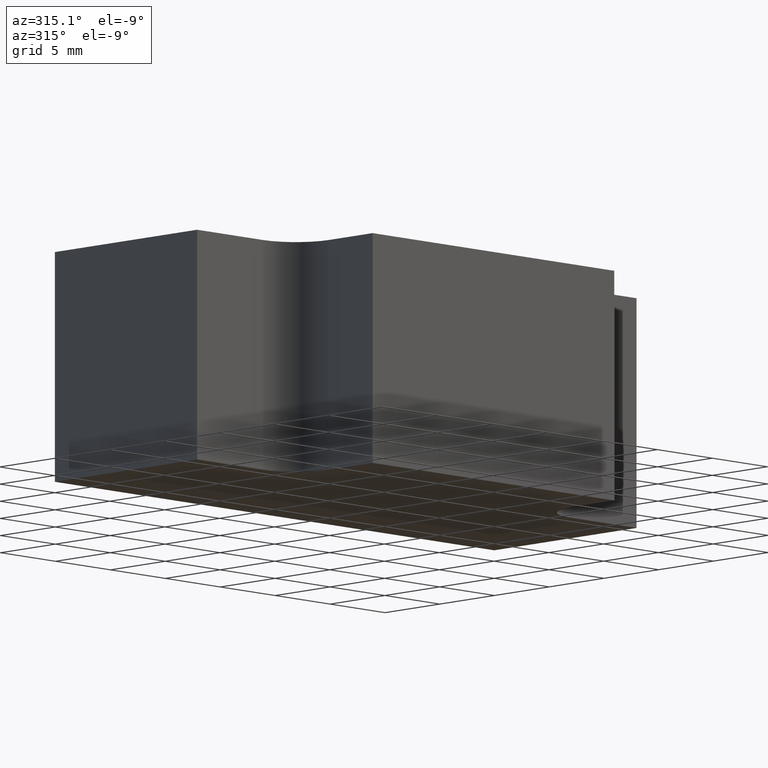
[diagram: clean part render]
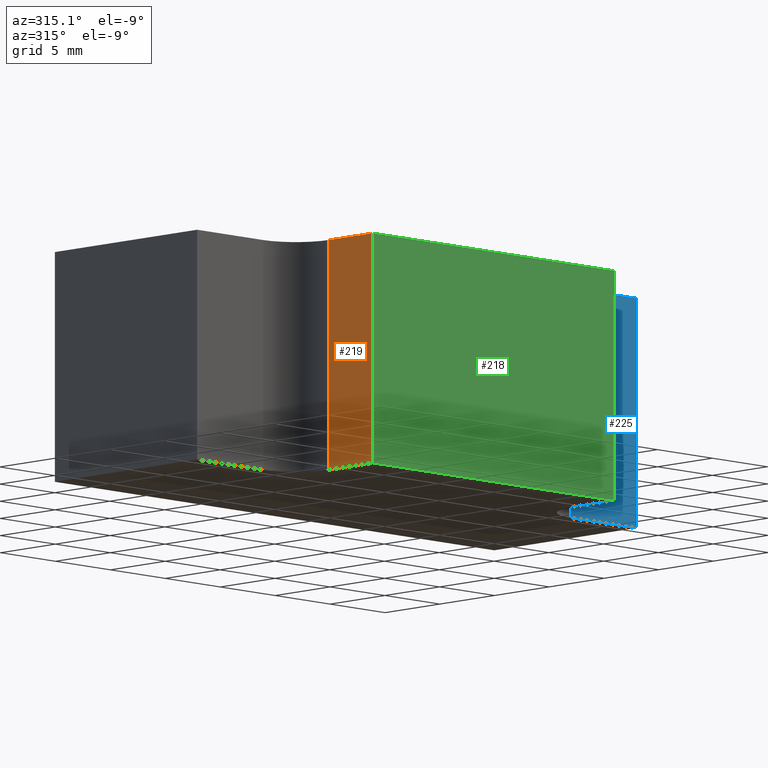
[diagram: same view with three faces highlighted in distinct colors, each labeled with its STEP entity id]
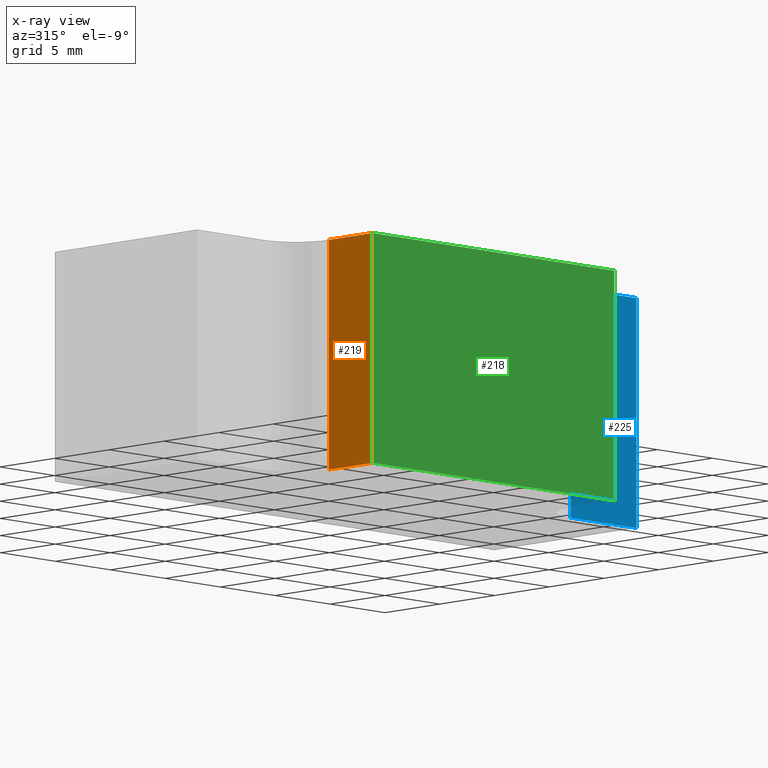
[diagram: x-ray of the same camera — body ghosted, the three highlighted faces saturated]
A machine part, auxiliary view with three faces highlighted in distinct colors.
The next image is the same camera in x-ray (body ghosted, the three faces saturated) — at least one of them is partly hidden behind the body in this view.
Their STEP definitions:

[orange] entity #219 — the highlighted planar face has unit normal (-1, 0, 0).
#19=FACE_OUTER_BOUND('',#31,.T.);
#31=EDGE_LOOP('',(#161,#162,#163,#164));
#43=LINE('',#338,#69);
#50=LINE('',#354,#76);
#52=LINE('',#358,#78);
#53=LINE('',#359,#79);
#69=VECTOR('',#276,10.);
#76=VECTOR('',#287,10.);
#78=VECTOR('',#291,10.);
#79=VECTOR('',#292,10.);
#100=VERTEX_POINT('',#335);
#101=VERTEX_POINT('',#337);
#108=VERTEX_POINT('',#352);
#109=VERTEX_POINT('',#357);
#120=EDGE_CURVE('',#101,#100,#43,.T.);
#128=EDGE_CURVE('',#100,#108,#50,.T.);
#130=EDGE_CURVE('',#108,#109,#52,.T.);
#131=EDGE_CURVE('',#101,#109,#53,.T.);
#161=ORIENTED_EDGE('',*,*,#130,.T.);
#162=ORIENTED_EDGE('',*,*,#131,.F.);
#163=ORIENTED_EDGE('',*,*,#120,.T.);
#164=ORIENTED_EDGE('',*,*,#128,.T.);
#209=PLANE('',#256);
#219=ADVANCED_FACE('',(#19),#209,.T.);
#256=AXIS2_PLACEMENT_3D('',#356,#289,#290);
#276=DIRECTION('',(-5.55111512312578E-16,-1.,0.));
#287=DIRECTION('',(0.,0.,1.));
#289=DIRECTION('center_axis',(-1.,5.55111512312578E-16,0.));
#290=DIRECTION('ref_axis',(0.,0.,1.));
#291=DIRECTION('',(5.55111512312578E-16,1.,0.));
#292=DIRECTION('',(0.,0.,1.));
#335=CARTESIAN_POINT('',(-11.,-20.,-7.5));
#337=CARTESIAN_POINT('',(-11.,-16.,-7.5));
#338=CARTESIAN_POINT('',(-11.,-16.,-7.5));
#352=CARTESIAN_POINT('',(-11.,-20.,7.5));
#354=CARTESIAN_POINT('',(-11.,-20.,0.));
#356=CARTESIAN_POINT('Origin',(-11.,-20.,0.));
#357=CARTESIAN_POINT('',(-11.,-16.,7.5));
#358=CARTESIAN_POINT('',(-11.,-16.,7.5));
#359=CARTESIAN_POINT('',(-11.,-16.,0.));

[blue] entity #225 — the highlighted planar face has unit normal (0, -1, 0).
#25=FACE_OUTER_BOUND('',#37,.T.);
#37=EDGE_LOOP('',(#185,#186,#187,#188));
#48=LINE('',#349,#74);
#62=LINE('',#379,#88);
#63=LINE('',#382,#89);
#64=LINE('',#383,#90);
#74=VECTOR('',#283,10.);
#88=VECTOR('',#313,10.);
#89=VECTOR('',#316,10.);
#90=VECTOR('',#317,10.);
#98=VERTEX_POINT('',#331);
#106=VERTEX_POINT('',#347);
#114=VERTEX_POINT('',#377);
#115=VERTEX_POINT('',#381);
#126=EDGE_CURVE('',#98,#106,#48,.T.);
#141=EDGE_CURVE('',#106,#114,#62,.T.);
#142=EDGE_CURVE('',#114,#115,#63,.T.);
#143=EDGE_CURVE('',#98,#115,#64,.T.);
#185=ORIENTED_EDGE('',*,*,#142,.T.);
#186=ORIENTED_EDGE('',*,*,#143,.F.);
#187=ORIENTED_EDGE('',*,*,#126,.T.);
#188=ORIENTED_EDGE('',*,*,#141,.T.);
#214=PLANE('',#263);
#225=ADVANCED_FACE('',(#25),#214,.T.);
#263=AXIS2_PLACEMENT_3D('',#380,#314,#315);
#283=DIRECTION('',(1.,3.70074341541719E-16,0.));
#313=DIRECTION('',(0.,0.,1.));
#314=DIRECTION('center_axis',(3.70074341541719E-16,-1.,0.));
#315=DIRECTION('ref_axis',(0.,0.,-1.));
#316=DIRECTION('',(-1.,-3.70074341541719E-16,0.));
#317=DIRECTION('',(0.,0.,1.));
#331=CARTESIAN_POINT('',(14.,-13.,-7.5));
#347=CARTESIAN_POINT('',(20.,-13.,-7.5));
#349=CARTESIAN_POINT('',(14.,-13.,-7.5));
#377=CARTESIAN_POINT('',(20.,-13.,7.5));
#379=CARTESIAN_POINT('',(20.,-13.,0.));
#380=CARTESIAN_POINT('Origin',(20.,-13.,0.));
#381=CARTESIAN_POINT('',(14.,-13.,7.5));
#382=CARTESIAN_POINT('',(14.,-13.,7.5));
#383=CARTESIAN_POINT('',(14.,-13.,0.));

[green] entity #218 — the highlighted planar face has unit normal (0, -1, 0).
#18=FACE_OUTER_BOUND('',#30,.T.);
#30=EDGE_LOOP('',(#157,#158,#159,#160));
#42=LINE('',#336,#68);
#49=LINE('',#353,#75);
#50=LINE('',#354,#76);
#51=LINE('',#355,#77);
#68=VECTOR('',#275,10.);
#75=VECTOR('',#286,10.);
#76=VECTOR('',#287,10.);
#77=VECTOR('',#288,10.);
#99=VERTEX_POINT('',#333);
#100=VERTEX_POINT('',#335);
#107=VERTEX_POINT('',#351);
#108=VERTEX_POINT('',#352);
#119=EDGE_CURVE('',#100,#99,#42,.T.);
#127=EDGE_CURVE('',#107,#108,#49,.T.);
#128=EDGE_CURVE('',#100,#108,#50,.T.);
#129=EDGE_CURVE('',#107,#99,#51,.T.);
#157=ORIENTED_EDGE('',*,*,#127,.T.);
#158=ORIENTED_EDGE('',*,*,#128,.F.);
#159=ORIENTED_EDGE('',*,*,#119,.T.);
#160=ORIENTED_EDGE('',*,*,#129,.F.);
#208=PLANE('',#255);
#218=ADVANCED_FACE('',(#18),#208,.T.);
#255=AXIS2_PLACEMENT_3D('',#350,#284,#285);
#275=DIRECTION('',(1.,0.,0.));
#284=DIRECTION('center_axis',(0.,-1.,0.));
#285=DIRECTION('ref_axis',(0.,0.,-1.));
#286=DIRECTION('',(-1.,0.,0.));
#287=DIRECTION('',(0.,0.,1.));
#288=DIRECTION('',(0.,0.,-1.));
#333=CARTESIAN_POINT('',(11.,-20.,-7.5));
#335=CARTESIAN_POINT('',(-11.,-20.,-7.5));
#336=CARTESIAN_POINT('',(-11.,-20.,-7.5));
#350=CARTESIAN_POINT('Origin',(11.,-20.,0.));
#351=CARTESIAN_POINT('',(11.,-20.,7.5));
#352=CARTESIAN_POINT('',(-11.,-20.,7.5));
#353=CARTESIAN_POINT('',(-11.,-20.,7.5));
#354=CARTESIAN_POINT('',(-11.,-20.,0.));
#355=CARTESIAN_POINT('',(11.,-20.,0.));